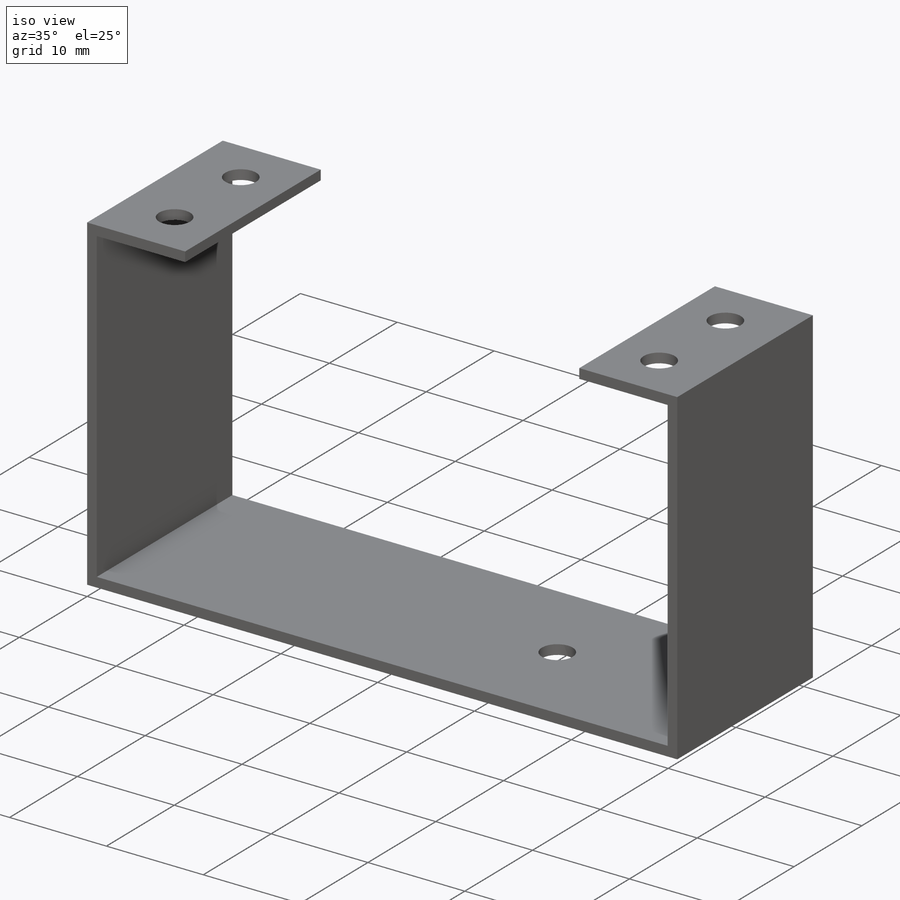
[diagram: iso view]
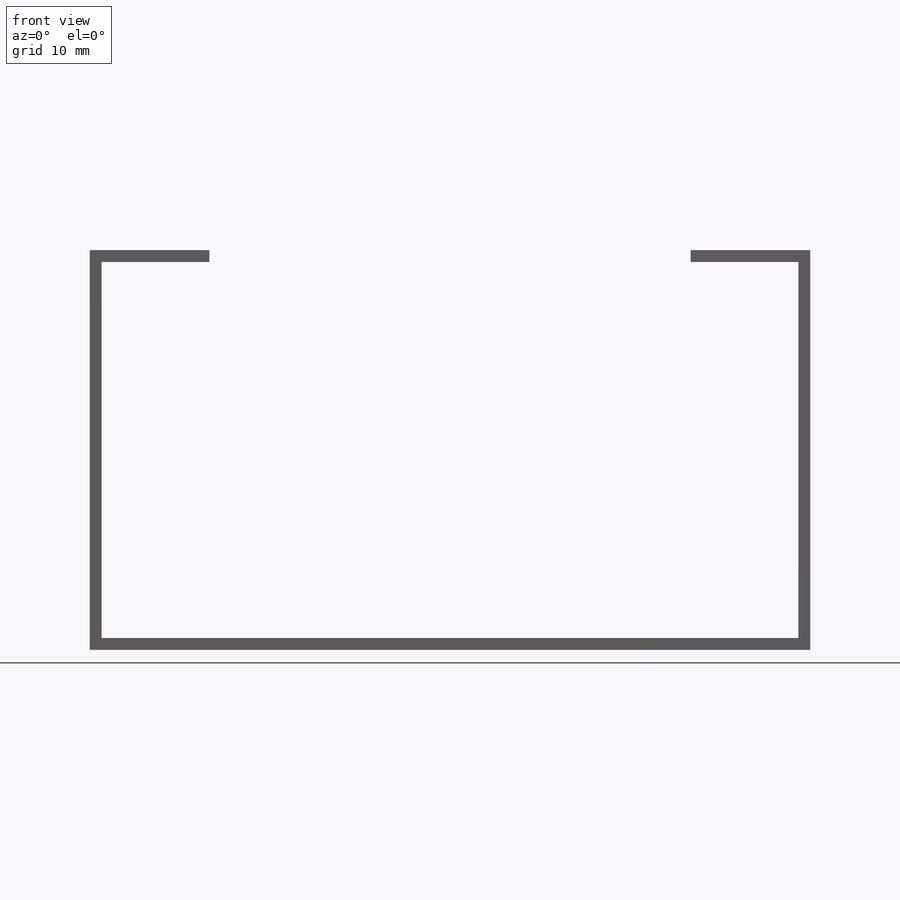
[diagram: front view]
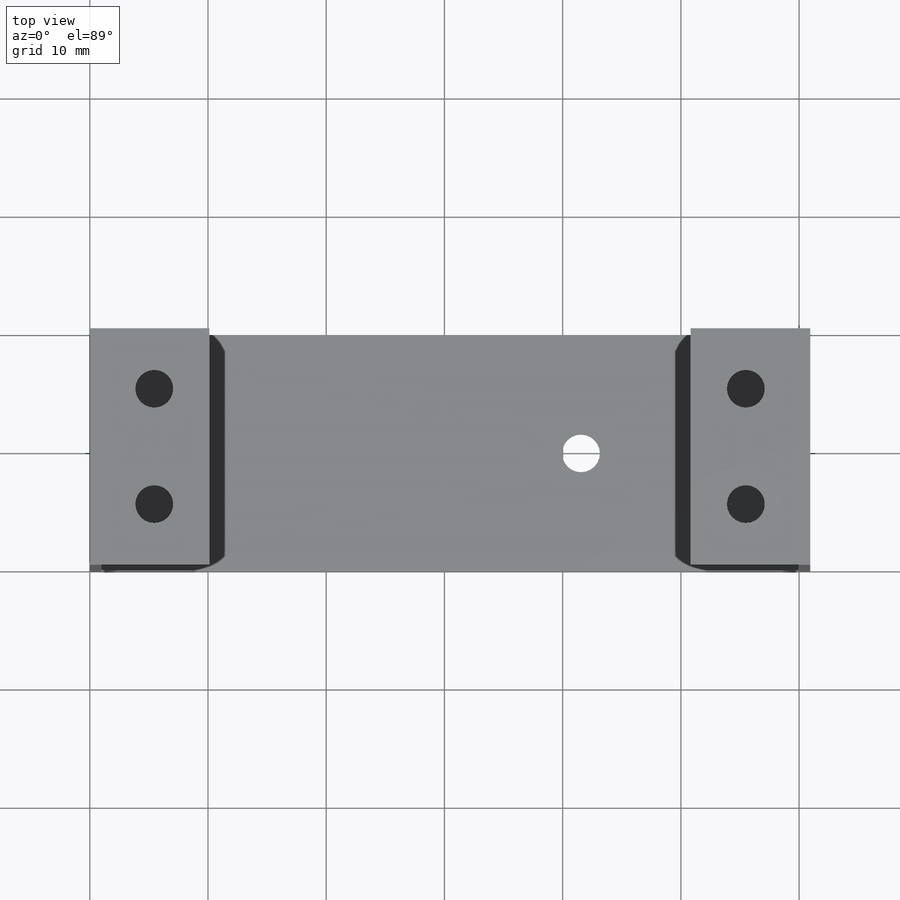
[diagram: top view]
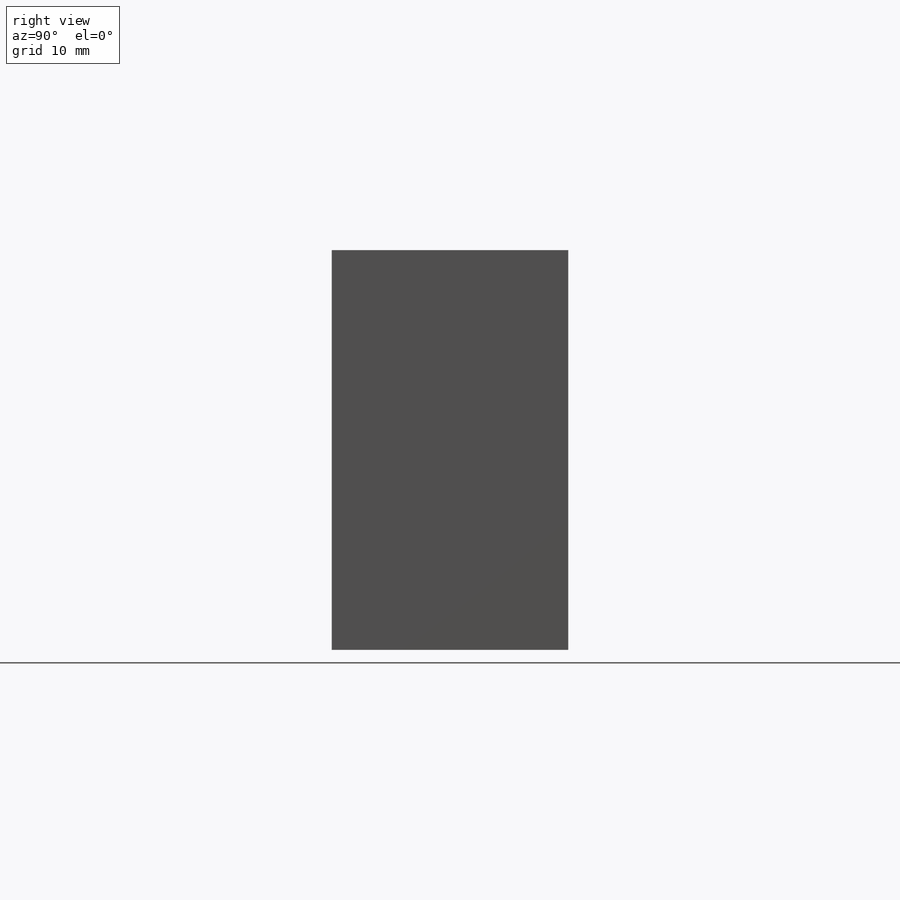
[diagram: right view]
SOLIDWORKS PART (.sldprt)
format: sldprt  version: not decoded by parser v0  size: 229,376 bytes
history: native  units: mm
features: sketch x10, extrude x5, cut_extrude x5, plane x3, material x1 + 2 further entries (+8 scaffold rows collapsed)
feature tree (34):
  scaffold x8  (default folders/planes/origin — collapsed)
  material  "材料 <指定なし>"
  "ｻｰﾌｪｽ ﾎﾞﾃﾞｨ"
  "ｿﾘｯﾄﾞ ﾎﾞﾃﾞｨ"
  plane  "正面"
  plane  "平面"
  plane  "右側面"
  sketch  "ｽｹｯﾁ2"
  extrude  "ﾎﾞｽ - 押し出し1"  Depth=1mm
  sketch  "ｽｹｯﾁ3"
  extrude  "ﾎﾞｽ - 押し出し2"  Depth=32.81mm
  sketch  "ｽｹｯﾁ4"
  extrude  "ﾎﾞｽ - 押し出し3"  Depth=32.81mm
  sketch  "ｽｹｯﾁ9"
  extrude  "ﾎﾞｽ - 押し出し8"  Depth=9.12mm
  sketch  "ｽｹｯﾁ10"
  extrude  "ﾎﾞｽ - 押し出し9"  Depth=9.12mm
  sketch  "ｽｹｯﾁ13"  dims[D1=1.5mm]
  cut_extrude  "ｶｯﾄ - 押し出し2"  Depth=1mm
  sketch  "ｽｹｯﾁ14"  dims[D1=1.5mm]
  cut_extrude  "ｶｯﾄ - 押し出し3"  Depth=1mm
  sketch  "ｽｹｯﾁ15"  dims[D1=1.5mm]
  cut_extrude  "ｶｯﾄ - 押し出し4"  Depth=1mm
  sketch  "ｽｹｯﾁ16"  dims[D1=1.5mm]
  cut_extrude  "ｶｯﾄ - 押し出し5"  Depth=1mm
  sketch  "ｽｹｯﾁ17"  dims[D1=20.0mm]
  cut_extrude  "ｶｯﾄ - 押し出し6"  Depth=1mm
decode coverage: 15 of 20 modeling features carry decoded parameters; 2 rows unclassified (native names shown)
note: suppression state not decoded; provenance and decode notes live in map.json
